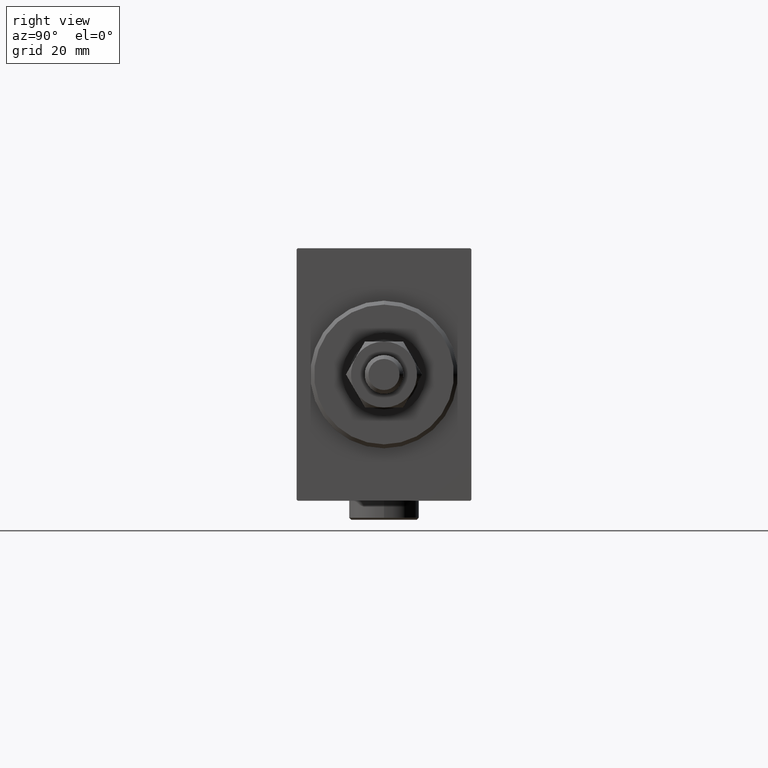
[diagram: clean part render]
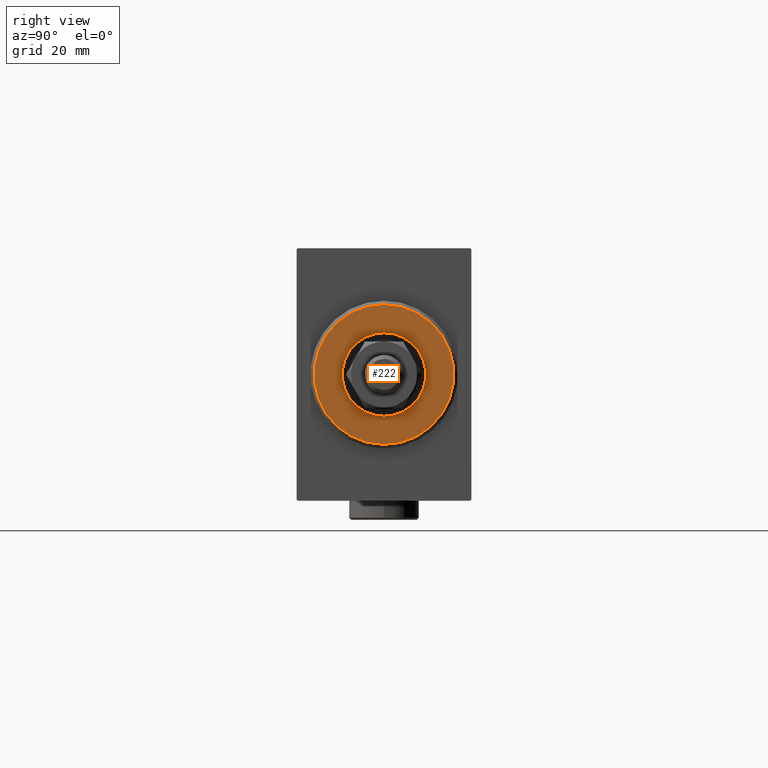
[diagram: same view with one face highlighted and labeled with its STEP entity id]
A machine part, right view. The second image highlights one B-rep face of the part: STEP entity #222.
In plain terms, the highlighted planar face has unit normal (1, 0, 0).
Its self-contained STEP definition (entity closure, byte-faithful):
#222 = ADVANCED_FACE ( 'NONE', ( #4390, #11589 ), #18354, .T. ) ;
#1352 = CARTESIAN_POINT ( 'NONE',  ( 3.000000000000000000, 0.000000000000000000, 0.000000000000000000 ) ) ;
#1802 = DIRECTION ( 'NONE',  ( 1.000000000000000000, -0.000000000000000000, 0.000000000000000000 ) ) ;
#2684 = VERTEX_POINT ( 'NONE', #27123 ) ;
#2911 = DIRECTION ( 'NONE',  ( 0.000000000000000000, 0.000000000000000000, -1.000000000000000000 ) ) ;
#3604 = CARTESIAN_POINT ( 'NONE',  ( 3.000000000000000000, 0.000000000000000000, 0.000000000000000000 ) ) ;
#4390 = FACE_OUTER_BOUND ( 'NONE', #22539, .T. ) ;
#4952 = AXIS2_PLACEMENT_3D ( 'NONE', #28529, #24805, #39017 ) ;
#5862 = DIRECTION ( 'NONE',  ( -1.000000000000000000, 0.000000000000000000, -0.000000000000000000 ) ) ;
#6314 = CARTESIAN_POINT ( 'NONE',  ( 3.000000000000000000, 0.000000000000000000, 0.000000000000000000 ) ) ;
#7441 = AXIS2_PLACEMENT_3D ( 'NONE', #43249, #12057, #25773 ) ;
#7848 = CIRCLE ( 'NONE', #11554, 17.99999999999999645 ) ;
#9003 = CARTESIAN_POINT ( 'NONE',  ( 3.000000000000000000, 0.000000000000000000, 10.75000000000000000 ) ) ;
#9432 = CIRCLE ( 'NONE', #29477, 17.99999999999999645 ) ;
#9661 = VERTEX_POINT ( 'NONE', #43665 ) ;
#10117 = CIRCLE ( 'NONE', #4952, 10.75000000000000000 ) ;
#10621 = EDGE_CURVE ( 'NONE', #9661, #2684, #7848, .T. ) ;
#11554 = AXIS2_PLACEMENT_3D ( 'NONE', #3604, #42936, #2911 ) ;
#11589 = FACE_BOUND ( 'NONE', #22491, .T. ) ;
#12057 = DIRECTION ( 'NONE',  ( 1.000000000000000000, -0.000000000000000000, 0.000000000000000000 ) ) ;
#13965 = EDGE_CURVE ( 'NONE', #28977, #42428, #10117, .T. ) ;
#14584 = ORIENTED_EDGE ( 'NONE', *, *, #13965, .T. ) ;
#15765 = DIRECTION ( 'NONE',  ( 0.000000000000000000, 0.000000000000000000, -1.000000000000000000 ) ) ;
#17391 = EDGE_CURVE ( 'NONE', #42428, #28977, #35367, .T. ) ;
#18354 = PLANE ( 'NONE',  #7441 ) ;
#18766 = EDGE_CURVE ( 'NONE', #2684, #9661, #9432, .T. ) ;
#22491 = EDGE_LOOP ( 'NONE', ( #14584, #37884 ) ) ;
#22539 = EDGE_LOOP ( 'NONE', ( #36003, #40666 ) ) ;
#24805 = DIRECTION ( 'NONE',  ( -1.000000000000000000, 0.000000000000000000, -0.000000000000000000 ) ) ;
#25773 = DIRECTION ( 'NONE',  ( 0.000000000000000000, 0.000000000000000000, -1.000000000000000000 ) ) ;
#27123 = CARTESIAN_POINT ( 'NONE',  ( 3.000000000000000000, 2.265596578422603002E-15, -17.99999999999999645 ) ) ;
#27189 = AXIS2_PLACEMENT_3D ( 'NONE', #6314, #5862, #27695 ) ;
#27695 = DIRECTION ( 'NONE',  ( 0.000000000000000000, 0.000000000000000000, -1.000000000000000000 ) ) ;
#28529 = CARTESIAN_POINT ( 'NONE',  ( 3.000000000000000000, 0.000000000000000000, 0.000000000000000000 ) ) ;
#28977 = VERTEX_POINT ( 'NONE', #9003 ) ;
#29477 = AXIS2_PLACEMENT_3D ( 'NONE', #1352, #1802, #15765 ) ;
#35367 = CIRCLE ( 'NONE', #27189, 10.75000000000000000 ) ;
#36003 = ORIENTED_EDGE ( 'NONE', *, *, #10621, .T. ) ;
#37884 = ORIENTED_EDGE ( 'NONE', *, *, #17391, .T. ) ;
#39017 = DIRECTION ( 'NONE',  ( 0.000000000000000000, 0.000000000000000000, -1.000000000000000000 ) ) ;
#40666 = ORIENTED_EDGE ( 'NONE', *, *, #18766, .T. ) ;
#42428 = VERTEX_POINT ( 'NONE', #42877 ) ;
#42877 = CARTESIAN_POINT ( 'NONE',  ( 3.000000000000000000, 1.316495309083404223E-15, -10.75000000000000000 ) ) ;
#42936 = DIRECTION ( 'NONE',  ( 1.000000000000000000, -0.000000000000000000, 0.000000000000000000 ) ) ;
#43249 = CARTESIAN_POINT ( 'NONE',  ( 3.000000000000000000, 0.000000000000000000, 0.000000000000000000 ) ) ;
#43665 = CARTESIAN_POINT ( 'NONE',  ( 3.000000000000000000, 0.000000000000000000, 17.99999999999999645 ) ) ;